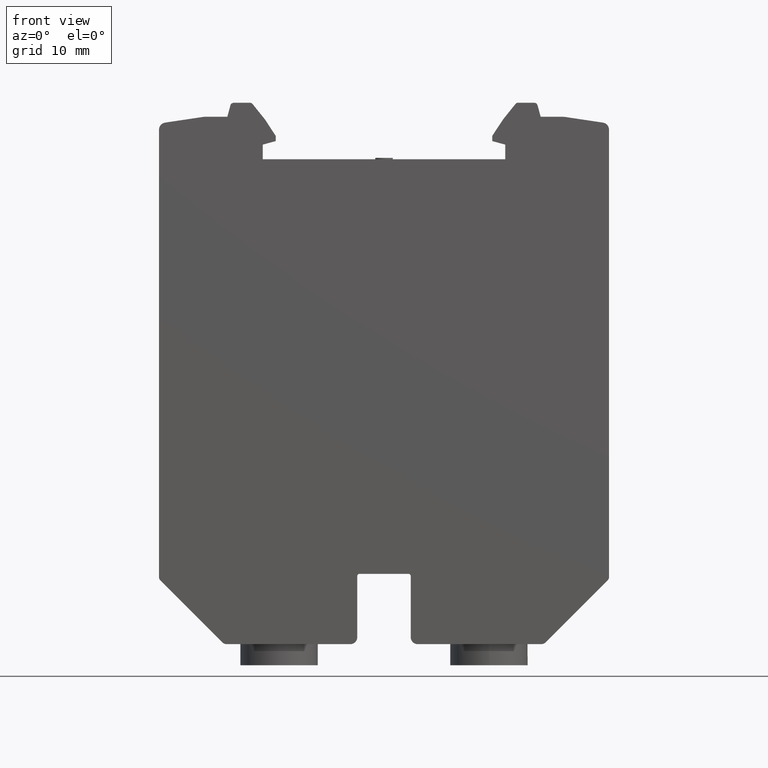
[diagram: clean part render]
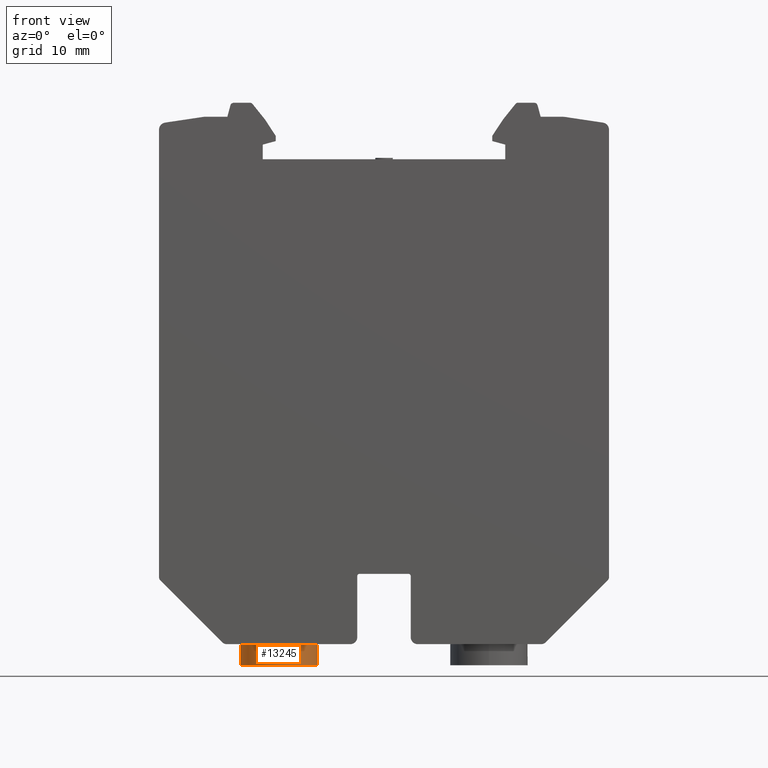
[diagram: same view with one face highlighted and labeled with its STEP entity id]
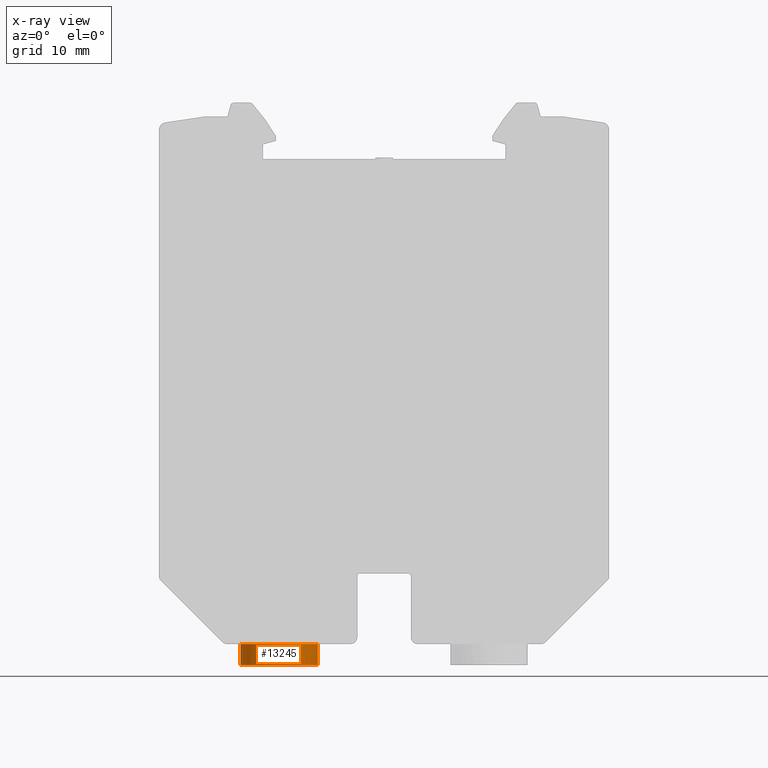
[diagram: x-ray of the same camera — body ghosted, the highlighted face saturated]
A machine part, front view. The second image highlights one B-rep face of the part: STEP entity #13245.
The next image is the same camera in x-ray: the body ghosted, the highlighted face saturated — about 0% of this face is hidden behind the body in this view.
In plain terms, the highlighted cylindrical surface (partial cylindrical patch) has radius 5.5 mm, axis along (0, 0, -1).
Its self-contained STEP definition (entity closure, byte-faithful):
#1873 = EDGE_CURVE ( 'NONE', #22350, #22113, #2900, .T. ) ;
#1918 = EDGE_CURVE ( 'NONE', #22113, #22370, #2956, .T. ) ;
#2647 = EDGE_CURVE ( 'NONE', #22347, #22249, #3146, .T. ) ;
#2686 = EDGE_CURVE ( 'NONE', #22249, #22384, #3153, .T. ) ;
#2900 = B_SPLINE_CURVE_WITH_KNOTS ( 'NONE', 3,
 ( #14586, #14559, #14534, #14551, #14549, #14552, #14554, #14565, #14540, #14539 ),
 .UNSPECIFIED., .F., .F.,
 ( 4, 2, 2, 2, 4 ),
 ( 0.0000000000000000000, 0.2500000000000000000, 0.5000000000000000000, 0.7500000000000000000, 1.000000000000000000 ),
 .UNSPECIFIED. ) ;
#2956 = B_SPLINE_CURVE_WITH_KNOTS ( 'NONE', 3,
 ( #14819, #14835, #14814, #14836, #14857, #14856, #14859, #14812, #14860, #14837 ),
 .UNSPECIFIED., .F., .F.,
 ( 4, 2, 2, 2, 4 ),
 ( 0.0000000000000000000, 0.2500000000000000000, 0.5000000000000000000, 0.7500000000000000000, 1.000000000000000000 ),
 .UNSPECIFIED. ) ;
#3146 = B_SPLINE_CURVE_WITH_KNOTS ( 'NONE', 3,
 ( #19430, #19410, #19441, #19431, #19402, #19413, #19408, #19440, #19406, #19399, #19407, #19400, #19418, #19403, #19445, #19409, #19419, #19428, #19443, #19436, #19401, #19397, #19420, #19429, #19448, #19423, #19446, #19411, #19421, #19422, #19433, #19437, #19444, #19390, #19447, #19391, #19424, #19392, #19393, #19434, #19425, #19426 ),
 .UNSPECIFIED., .F., .F.,
 ( 4, 1, 1, 1, 2, 2, 1, 1, 2, 2, 1, 2, 2, 2, 1, 2, 2, 1, 1, 2, 2, 1, 1, 1, 2, 2, 4 ),
 ( 0.5000000000000000000, 0.5312499999999977800, 0.5468749999999968900, 0.5546874999999957800, 0.5585937499999953400, 0.5624999999999950000, 0.5937499999999955600, 0.6093749999999962300, 0.6171874999999970000, 0.6249999999999976700, 0.6562500000000021100, 0.6718750000000043300, 0.6875000000000065500, 0.7500000000000115500, 0.7812500000000145400, 0.7968750000000151000, 0.8125000000000156500, 0.8437500000000182100, 0.8593750000000194300, 0.8671875000000210900, 0.8750000000000227600, 0.9062500000000277600, 0.9218750000000302000, 0.9296875000000313100, 0.9335937500000306400, 0.9375000000000299800, 1.000000000000000000 ),
 .UNSPECIFIED. ) ;
#3153 = B_SPLINE_CURVE_WITH_KNOTS ( 'NONE', 3,
 ( #19702, #19721, #19693, #19674, #19695, #19683, #19679, #19703, #19680, #19717, #19722, #19700, #19704, #19705, #19691, #19685, #19687, #19698, #19682, #19707, #19712, #19710, #19686, #19688, #19696, #19713, #19720, #19690, #19692, #19697, #19699, #19723, #19725, #19726, #19671, #19727, #19672 ),
 .UNSPECIFIED., .F., .F.,
 ( 4, 1, 1, 1, 1, 2, 2, 1, 2, 2, 2, 1, 2, 2, 1, 1, 2, 2, 1, 1, 1, 2, 2, 4 ),
 ( 0.0000000000000000000, 0.06249999999998588600, 0.09374999999997882200, 0.1093749999999751200, 0.1171874999999730600, 0.1210937499999734200, 0.1249999999999737700, 0.1562499999999740200, 0.1718749999999741600, 0.1874999999999742700, 0.2499999999999766900, 0.2812499999999779100, 0.2968749999999787400, 0.3124999999999796300, 0.3437499999999804000, 0.3593749999999796800, 0.3671874999999798500, 0.3749999999999800200, 0.4062499999999776300, 0.4218749999999764600, 0.4296874999999764600, 0.4335937499999770700, 0.4374999999999776800, 0.5000000000000000000 ),
 .UNSPECIFIED. ) ;
#6718 = CARTESIAN_POINT ( 'NONE',  ( 85.07833936628553300, 44.57478666713348800, -3.004123750395757900 ) ) ;
#6891 = CARTESIAN_POINT ( 'NONE',  ( 85.07833936628148300, 44.57478666713348800, -0.004416350880061179600 ) ) ;
#6937 = CARTESIAN_POINT ( 'NONE',  ( 79.57833936627963600, 50.07478666713402800, -0.004416350887726059600 ) ) ;
#6988 = CARTESIAN_POINT ( 'NONE',  ( 79.57833936628517800, 50.07478666713289800, -3.004231898819613700 ) ) ;
#7011 = CARTESIAN_POINT ( 'NONE',  ( 90.57833936627962100, 50.07478666713426900, -0.004416350872396258800 ) ) ;
#7046 = CARTESIAN_POINT ( 'NONE',  ( 90.57833936628520600, 50.07478666713338800, -3.004231898799254900 ) ) ;
#7895 = CARTESIAN_POINT ( 'NONE',  ( 85.07833936624217600, 50.07478666713348800, 20.22958964065733400 ) ) ;
#7900 = DIRECTION ( 'NONE',  ( -1.000000000000000000, 0.0000000000000000000, -1.850792246733071700E-012 ) ) ;
#7905 = DIRECTION ( 'NONE',  ( 1.850702890911972000E-012, 6.461698349976176300E-027, -1.000000000000000000 ) ) ;
#7918 = FACE_OUTER_BOUND ( 'NONE', #21421, .T. ) ;
#7920 = CYLINDRICAL_SURFACE ( 'NONE', #15906, 5.500000000000005300 ) ;
#10332 = VECTOR ( 'NONE', #12142, 1000.000000000000000 ) ;
#10346 = VECTOR ( 'NONE', #11974, 1000.000000000000000 ) ;
#11871 = LINE ( 'NONE', #11973, #10346 ) ;
#11973 = CARTESIAN_POINT ( 'NONE',  ( 90.57833936624219000, 50.07478666713348800, 20.22958964066751600 ) ) ;
#11974 = DIRECTION ( 'NONE',  ( 1.850702890911972000E-012, 6.461698349976176300E-027, -1.000000000000000000 ) ) ;
#12128 = LINE ( 'NONE', #12139, #10332 ) ;
#12139 = CARTESIAN_POINT ( 'NONE',  ( 79.57833936624217600, 50.07478666713348800, 20.22958964064715600 ) ) ;
#12142 = DIRECTION ( 'NONE',  ( 1.850702890911972000E-012, 6.461698349976176300E-027, -1.000000000000000000 ) ) ;
#13245 = ADVANCED_FACE ( 'NONE', ( #7918 ), #7920, .T. ) ;
#14026 = EDGE_CURVE ( 'NONE', #22384, #22370, #11871, .T. ) ;
#14053 = EDGE_CURVE ( 'NONE', #22347, #22350, #12128, .T. ) ;
#14534 = CARTESIAN_POINT ( 'NONE',  ( 79.72148964460944900, 48.63517330315740100, -3.004262213910465100 ) ) ;
#14539 = CARTESIAN_POINT ( 'NONE',  ( 85.07833936628553300, 44.57478666713348800, -3.004123750395757900 ) ) ;
#14540 = CARTESIAN_POINT ( 'NONE',  ( 84.35839104983783400, 44.57478666713343800, -3.004137596747568800 ) ) ;
#14549 = CARTESIAN_POINT ( 'NONE',  ( 80.68017173309527800, 46.69477970727133000, -3.004220674857252400 ) ) ;
#14551 = CARTESIAN_POINT ( 'NONE',  ( 80.27251423033678200, 47.30488227509343300, -3.004234521208485600 ) ) ;
#14552 = CARTESIAN_POINT ( 'NONE',  ( 81.69833240642327600, 45.67661903394337500, -3.004192982154409600 ) ) ;
#14554 = CARTESIAN_POINT ( 'NONE',  ( 82.30843497424542900, 45.26896153118494200, -3.004179135802800300 ) ) ;
#14559 = CARTESIAN_POINT ( 'NONE',  ( 79.57833936628516400, 49.35483835068578200, -3.004276060261208400 ) ) ;
#14565 = CARTESIAN_POINT ( 'NONE',  ( 83.63872600230941100, 44.71793694545767300, -3.004151443099380100 ) ) ;
#14586 = CARTESIAN_POINT ( 'NONE',  ( 79.57833936628517800, 50.07478666713289800, -3.004231898819613700 ) ) ;
#14812 = CARTESIAN_POINT ( 'NONE',  ( 90.43518908796093600, 48.63517330315745100, -3.004262213890637000 ) ) ;
#14814 = CARTESIAN_POINT ( 'NONE',  ( 86.51795273026151300, 44.71793694545783600, -3.004151443094051900 ) ) ;
#14819 = CARTESIAN_POINT ( 'NONE',  ( 85.07833936628553300, 44.57478666713348800, -3.004123750395757900 ) ) ;
#14835 = CARTESIAN_POINT ( 'NONE',  ( 85.79828768273317500, 44.57478666713351600, -3.004137596744904200 ) ) ;
#14836 = CARTESIAN_POINT ( 'NONE',  ( 87.84824375832529600, 45.26896153118517700, -3.004179135792548500 ) ) ;
#14837 = CARTESIAN_POINT ( 'NONE',  ( 90.57833936628520600, 50.07478666713338800, -3.004231898799254900 ) ) ;
#14856 = CARTESIAN_POINT ( 'NONE',  ( 89.47650699947524800, 46.69477970727153600, -3.004220674840973400 ) ) ;
#14857 = CARTESIAN_POINT ( 'NONE',  ( 88.45834632614736400, 45.67661903394361600, -3.004192982141898200 ) ) ;
#14859 = CARTESIAN_POINT ( 'NONE',  ( 89.88416450223363100, 47.30488227509361800, -3.004234521190698400 ) ) ;
#14860 = CARTESIAN_POINT ( 'NONE',  ( 90.57833936628517800, 49.35483835068580300, -3.004276060240850900 ) ) ;
#15906 = AXIS2_PLACEMENT_3D ( 'NONE', #7895, #7905, #7900 ) ;
#19390 = CARTESIAN_POINT ( 'NONE',  ( 83.47172323419221100, 44.80934223313163000, -0.004416350881565710500 ) ) ;
#19391 = CARTESIAN_POINT ( 'NONE',  ( 83.92446644009689300, 44.69685988288846100, -0.004416350881141700700 ) ) ;
#19392 = CARTESIAN_POINT ( 'NONE',  ( 84.03369073132708400, 44.67486285063905200, -0.004416350881039409300 ) ) ;
#19393 = CARTESIAN_POINT ( 'NONE',  ( 84.05690119070905600, 44.67042893267994700, -0.004416350881017672300 ) ) ;
#19397 = CARTESIAN_POINT ( 'NONE',  ( 81.32335542318172400, 46.05156975581837700, -0.004416350883577727800 ) ) ;
#19399 = CARTESIAN_POINT ( 'NONE',  ( 79.76366766322669800, 48.63937974470758300, -0.004416350885038429100 ) ) ;
#19400 = CARTESIAN_POINT ( 'NONE',  ( 79.90139894663967400, 48.21700114068918500, -0.004416350884909438600 ) ) ;
#19401 = CARTESIAN_POINT ( 'NONE',  ( 80.92104536290052900, 46.45395860018254600, -0.004416350883954506300 ) ) ;
#19402 = CARTESIAN_POINT ( 'NONE',  ( 79.64504027422974300, 49.21899959335288300, -0.004416350885149526000 ) ) ;
#19403 = CARTESIAN_POINT ( 'NONE',  ( 79.94742017110040400, 48.09342974519876200, -0.004416350884866336800 ) ) ;
#19406 = CARTESIAN_POINT ( 'NONE',  ( 79.70256831966408100, 48.89876438179874900, -0.004416350885095649900 ) ) ;
#19407 = CARTESIAN_POINT ( 'NONE',  ( 79.85680182280280800, 48.34280814966077600, -0.004416350884951205500 ) ) ;
#19408 = CARTESIAN_POINT ( 'NONE',  ( 79.66262376773066500, 49.11539245595019300, -0.004416350885133060000 ) ) ;
#19409 = CARTESIAN_POINT ( 'NONE',  ( 80.14788352880711400, 47.62497630732048000, -0.004416350884678597200 ) ) ;
#19410 = CARTESIAN_POINT ( 'NONE',  ( 79.57832316385807300, 49.90675968616333300, -0.004416350885212009000 ) ) ;
#19411 = CARTESIAN_POINT ( 'NONE',  ( 82.46379359943053100, 45.22967296856698700, -0.004416350882509670700 ) ) ;
#19413 = CARTESIAN_POINT ( 'NONE',  ( 79.65544674894239600, 49.15682380294632700, -0.004416350885139781200 ) ) ;
#19418 = CARTESIAN_POINT ( 'NONE',  ( 79.93217091453503500, 48.13341760208398800, -0.004416350884880621300 ) ) ;
#19419 = CARTESIAN_POINT ( 'NONE',  ( 80.28174582734700900, 47.38186829673347900, -0.004416350884553231300 ) ) ;
#19420 = CARTESIAN_POINT ( 'NONE',  ( 81.53386214486555200, 45.86167404283028000, -0.004416350883380579900 ) ) ;
#19421 = CARTESIAN_POINT ( 'NONE',  ( 82.75496500689567400, 45.08806492906038000, -0.004416350882236979100 ) ) ;
#19422 = CARTESIAN_POINT ( 'NONE',  ( 82.88222198309416900, 45.03203459411538700, -0.004416350882117794900 ) ) ;
#19423 = CARTESIAN_POINT ( 'NONE',  ( 81.99098107005181600, 45.52212373938570500, -0.004416350882952474500 ) ) ;
#19424 = CARTESIAN_POINT ( 'NONE',  ( 83.98995469192178100, 44.68350649122377400, -0.004416350881080368700 ) ) ;
#19425 = CARTESIAN_POINT ( 'NONE',  ( 84.74140370433910600, 44.57485164686321600, -0.004416350880376611300 ) ) ;
#19426 = CARTESIAN_POINT ( 'NONE',  ( 85.07833936628148300, 44.57478666713348800, -0.004416350880061179600 ) ) ;
#19428 = CARTESIAN_POINT ( 'NONE',  ( 80.37516883471005300, 47.22191307278888000, -0.004416350884465737900 ) ) ;
#19429 = CARTESIAN_POINT ( 'NONE',  ( 81.75839640386423900, 45.68872639363314600, -0.004416350883170296800 ) ) ;
#19430 = CARTESIAN_POINT ( 'NONE',  ( 79.57833936627963600, 50.07478666713402800, -0.004416350887726059600 ) ) ;
#19431 = CARTESIAN_POINT ( 'NONE',  ( 79.62327187418792100, 49.36427782702108400, -0.004416350885169910800 ) ) ;
#19433 = CARTESIAN_POINT ( 'NONE',  ( 82.96760868503581300, 44.99571633189508200, -0.004416350882037831100 ) ) ;
#19434 = CARTESIAN_POINT ( 'NONE',  ( 84.40780477491671300, 44.60545847143266900, -0.004416350880689035900 ) ) ;
#19436 = CARTESIAN_POINT ( 'NONE',  ( 80.68241111435264700, 46.74760816018353200, -0.004416350884177993300 ) ) ;
#19437 = CARTESIAN_POINT ( 'NONE',  ( 83.01239856994710900, 44.97735326762524700, -0.004416350881995883800 ) ) ;
#19440 = CARTESIAN_POINT ( 'NONE',  ( 79.66610878002909100, 49.09589306599976800, -0.004416350885129795300 ) ) ;
#19441 = CARTESIAN_POINT ( 'NONE',  ( 79.58978857125545400, 49.65563985190240700, -0.004416350885201268500 ) ) ;
#19443 = CARTESIAN_POINT ( 'NONE',  ( 80.42297728963386300, 47.14451423934700400, -0.004416350884420962100 ) ) ;
#19444 = CARTESIAN_POINT ( 'NONE',  ( 83.21949803866870400, 44.89534198594545000, -0.004416350881801926900 ) ) ;
#19445 = CARTESIAN_POINT ( 'NONE',  ( 80.03283786778109700, 47.87760984191766800, -0.004416350884786341700 ) ) ;
#19446 = CARTESIAN_POINT ( 'NONE',  ( 82.22409502788524100, 45.36968658751826700, -0.004416350882734156000 ) ) ;
#19447 = CARTESIAN_POINT ( 'NONE',  ( 83.77247117015355100, 44.73073331228559400, -0.004416350881284048700 ) ) ;
#19448 = CARTESIAN_POINT ( 'NONE',  ( 81.91120314037776500, 45.57719419723301300, -0.004416350883027188100 ) ) ;
#19671 = CARTESIAN_POINT ( 'NONE',  ( 90.54770006877635100, 49.40442764406449100, -0.004416350874938819600 ) ) ;
#19672 = CARTESIAN_POINT ( 'NONE',  ( 90.57833936627962100, 50.07478666713426900, -0.004416350872396258800 ) ) ;
#19674 = CARTESIAN_POINT ( 'NONE',  ( 86.52859439096535300, 44.76393483048080700, -0.004416350878702847800 ) ) ;
#19679 = CARTESIAN_POINT ( 'NONE',  ( 87.02147395804669800, 44.92941537731861200, -0.004416350878241249100 ) ) ;
#19680 = CARTESIAN_POINT ( 'NONE',  ( 87.08127827854403300, 44.95240924162247600, -0.004416350878185241000 ) ) ;
#19682 = CARTESIAN_POINT ( 'NONE',  ( 89.46439963979555900, 46.75484370474869400, -0.004416350875953368300 ) ) ;
#19683 = CARTESIAN_POINT ( 'NONE',  ( 86.96030751097966100, 44.90642290897815100, -0.004416350878298533200 ) ) ;
#19685 = CARTESIAN_POINT ( 'NONE',  ( 88.69916743320767700, 45.91749266370944600, -0.004416350876670033800 ) ) ;
#19686 = CARTESIAN_POINT ( 'NONE',  ( 89.92345306483187500, 47.46024090025397200, -0.004416350875523449200 ) ) ;
#19687 = CARTESIAN_POINT ( 'NONE',  ( 89.10155627760622100, 46.31980272405805700, -0.004416350876293184200 ) ) ;
#19688 = CARTESIAN_POINT ( 'NONE',  ( 90.06506110434190800, 47.75141230772634800, -0.004416350875390828700 ) ) ;
#19690 = CARTESIAN_POINT ( 'NONE',  ( 90.25778404747144600, 48.21594533952908500, -0.004416350875210335900 ) ) ;
#19691 = CARTESIAN_POINT ( 'NONE',  ( 88.40551787327199000, 45.67885841522677000, -0.004416350876945044700 ) ) ;
#19692 = CARTESIAN_POINT ( 'NONE',  ( 90.34378380028853400, 48.46817053505841200, -0.004416350875129795300 ) ) ;
#19693 = CARTESIAN_POINT ( 'NONE',  ( 85.94351558949296100, 44.62317525884682100, -0.004416350879250794000 ) ) ;
#19695 = CARTESIAN_POINT ( 'NONE',  ( 86.81707894536437200, 44.85541084473885600, -0.004416350878432669800 ) ) ;
#19696 = CARTESIAN_POINT ( 'NONE',  ( 90.12109143929055200, 47.87866928393256000, -0.004416350875338354200 ) ) ;
#19697 = CARTESIAN_POINT ( 'NONE',  ( 90.42239272113272400, 48.76891847101605000, -0.004416350875056174500 ) ) ;
#19698 = CARTESIAN_POINT ( 'NONE',  ( 89.29145199060286600, 46.53030944575866800, -0.004416350876115338600 ) ) ;
#19699 = CARTESIAN_POINT ( 'NONE',  ( 90.45626615052754000, 48.92091374095487300, -0.004416350875024450800 ) ) ;
#19700 = CARTESIAN_POINT ( 'NONE',  ( 87.77125773667945900, 45.27819312820569300, -0.004416350877539051300 ) ) ;
#19702 = CARTESIAN_POINT ( 'NONE',  ( 85.07833936628148300, 44.57478666713348800, -0.004416350880061179600 ) ) ;
#19703 = CARTESIAN_POINT ( 'NONE',  ( 87.06220331744451400, 44.94499483512228000, -0.004416350878203106000 ) ) ;
#19704 = CARTESIAN_POINT ( 'NONE',  ( 87.93121296062437900, 45.37161613556710900, -0.004416350877389249200 ) ) ;
#19705 = CARTESIAN_POINT ( 'NONE',  ( 88.00861179405637800, 45.41942459048320300, -0.004416350877316762100 ) ) ;
#19707 = CARTESIAN_POINT ( 'NONE',  ( 89.57593183618985200, 46.90765044125080900, -0.004416350875848913700 ) ) ;
#19710 = CARTESIAN_POINT ( 'NONE',  ( 89.78343944588654300, 47.22054232872147800, -0.004416350875654574300 ) ) ;
#19712 = CARTESIAN_POINT ( 'NONE',  ( 89.63100229403092100, 46.98742837091339900, -0.004416350875797337700 ) ) ;
#19713 = CARTESIAN_POINT ( 'NONE',  ( 90.15740970151382800, 47.96405598588042800, -0.004416350875304340600 ) ) ;
#19717 = CARTESIAN_POINT ( 'NONE',  ( 87.27551619149593900, 45.02928516863863000, -0.004416350878003329200 ) ) ;
#19720 = CARTESIAN_POINT ( 'NONE',  ( 90.17577276578622000, 48.00884587079752900, -0.004416350875287142600 ) ) ;
#19721 = CARTESIAN_POINT ( 'NONE',  ( 85.42811714364637500, 44.57485412352983900, -0.004416350879733480800 ) ) ;
#19722 = CARTESIAN_POINT ( 'NONE',  ( 87.52814972609233700, 45.14433082966704800, -0.004416350877766732000 ) ) ;
#19723 = CARTESIAN_POINT ( 'NONE',  ( 90.46961954219091200, 48.98640199277723900, -0.004416350875011945200 ) ) ;
#19725 = CARTESIAN_POINT ( 'NONE',  ( 90.47826318277471100, 49.03013803218072300, -0.004416350875003850900 ) ) ;
#19726 = CARTESIAN_POINT ( 'NONE',  ( 90.48269506905801100, 49.05333751854222900, -0.004416350874999700600 ) ) ;
#19727 = CARTESIAN_POINT ( 'NONE',  ( 90.57830696143648200, 49.73873270521728100, -0.004416350874910156800 ) ) ;
#20302 = ORIENTED_EDGE ( 'NONE', *, *, #14053, .T. ) ;
#20328 = ORIENTED_EDGE ( 'NONE', *, *, #1873, .T. ) ;
#20330 = ORIENTED_EDGE ( 'NONE', *, *, #1918, .T. ) ;
#20350 = ORIENTED_EDGE ( 'NONE', *, *, #2647, .F. ) ;
#20359 = ORIENTED_EDGE ( 'NONE', *, *, #2686, .F. ) ;
#20367 = ORIENTED_EDGE ( 'NONE', *, *, #14026, .F. ) ;
#21421 = EDGE_LOOP ( 'NONE', ( #20367, #20359, #20350, #20302, #20328, #20330 ) ) ;
#22113 = VERTEX_POINT ( 'NONE', #6718 ) ;
#22249 = VERTEX_POINT ( 'NONE', #6891 ) ;
#22347 = VERTEX_POINT ( 'NONE', #6937 ) ;
#22350 = VERTEX_POINT ( 'NONE', #6988 ) ;
#22370 = VERTEX_POINT ( 'NONE', #7046 ) ;
#22384 = VERTEX_POINT ( 'NONE', #7011 ) ;